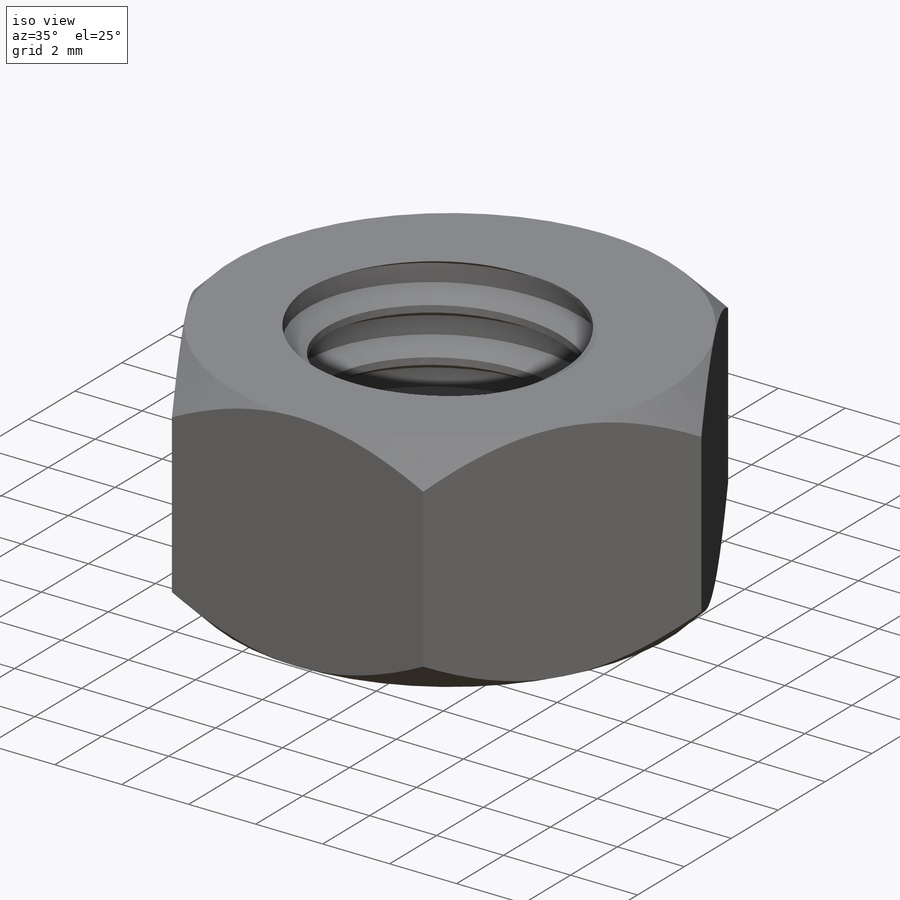
[diagram: iso view]
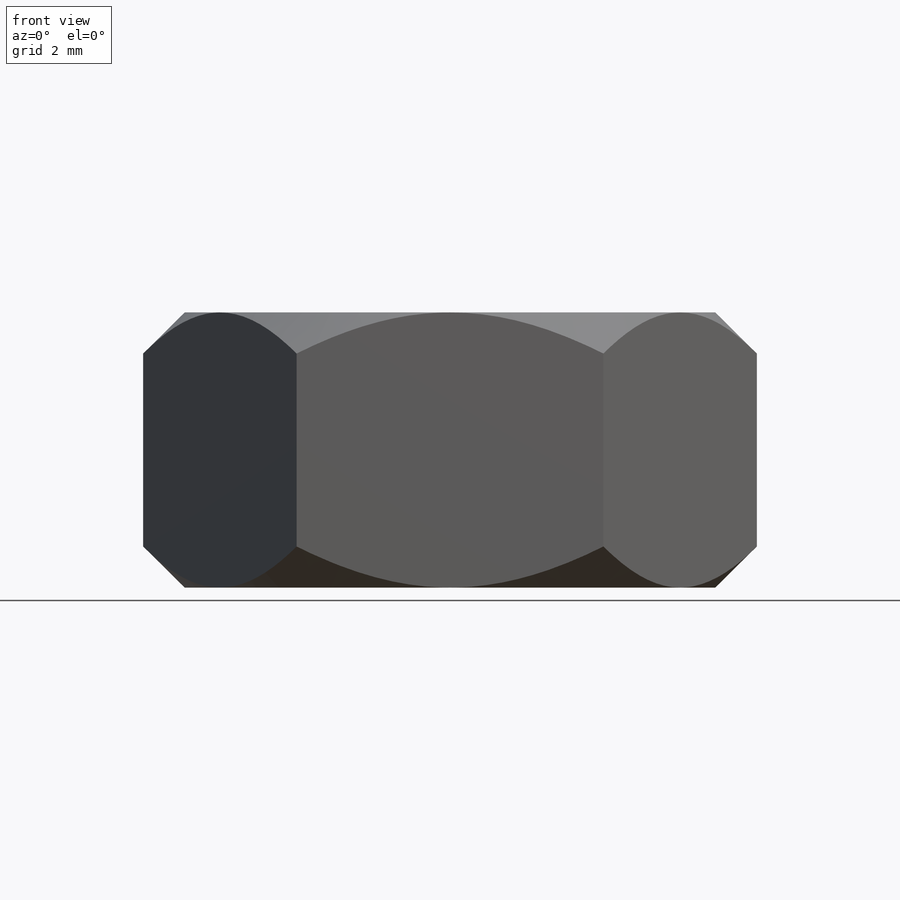
[diagram: front view]
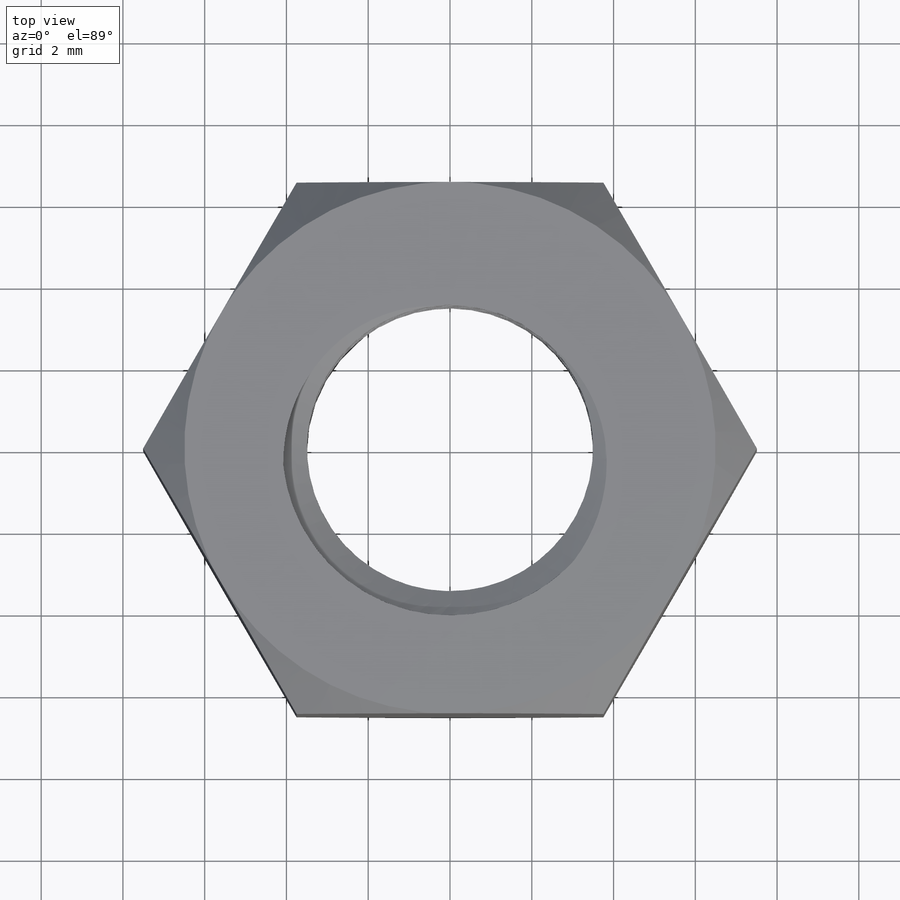
[diagram: top view]
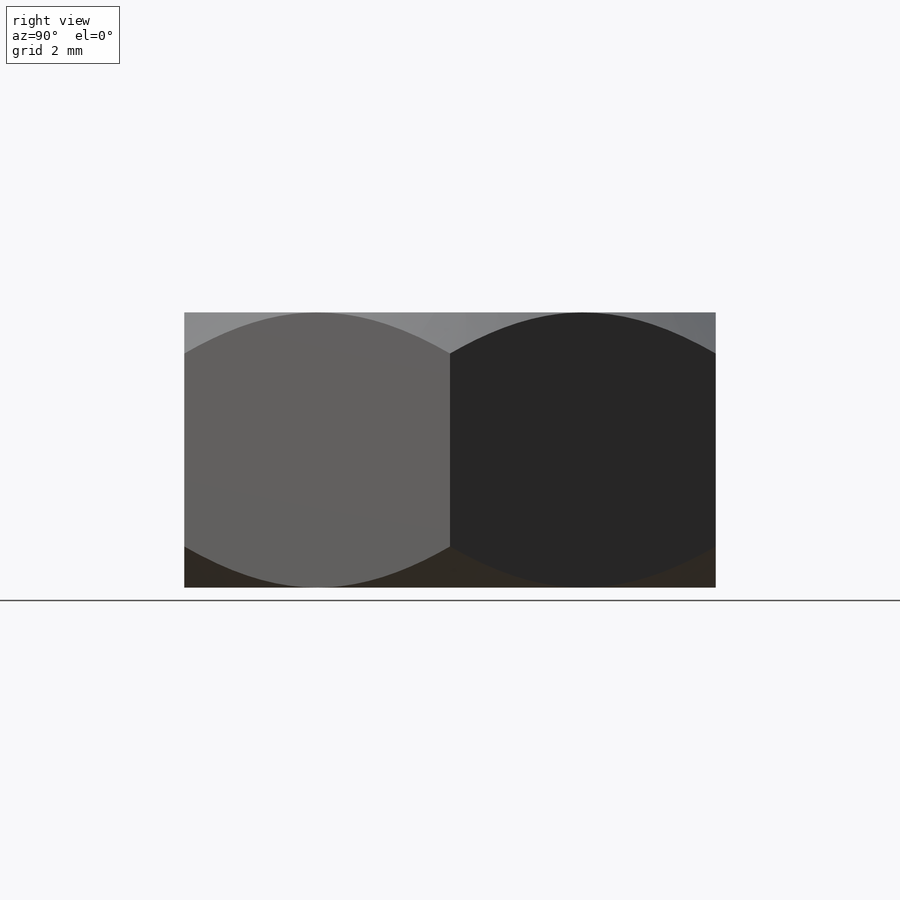
[diagram: right view]
SOLIDWORKS PART (.sldprt)
format: sldprt  version: not decoded by parser v0  size: 415,744 bytes
history: native  units: mm
features: sketch x5, cut_extrude x2, material x1, extrude x1, helix x1, sweep x1 (+12 scaffold rows collapsed)
feature tree (23):
  scaffold x12  (default folders/planes/origin — collapsed)
  material  "Material <not specified>"
  sketch  "Sketch1"  dims[D1=13.0mm D2=7.0mm]
  extrude  "Boss-Extrude1"  Depth=6.731mm
  sketch  "Sketch3"
  helix  "Helix/Spiral1"  Pitch=13.429mm
  sketch  "Sketch2"  dims[c1.D1=4.1mm c1.D2=~1.411111mm c1.D3=~0.414571mm c2.D3=120.0deg c2.D4=~0.567325mm c3.D4=120.0deg c4.D4=~0.45672mm c5.D4=120.0deg c5.D5=0.2mm]
  sweep  "Cut-Sweep3"
  sketch  "Sketch4"
  cut_extrude  "Cut-Extrude1"  Depth=6.731mm
  sketch  "Sketch5"
  cut_extrude  "Cut-Extrude2"  Depth=6.731mm
decode coverage: 6 of 10 modeling features carry decoded parameters
note: ~ marks probable driven/reference dimensions
note: suppression state not decoded; provenance and decode notes live in map.json
